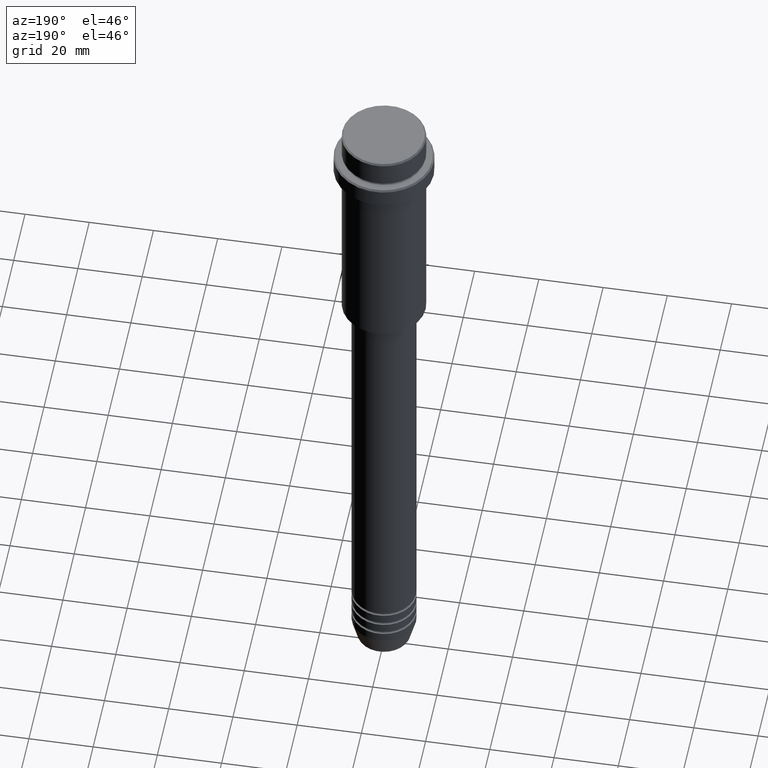
[diagram: clean part render]
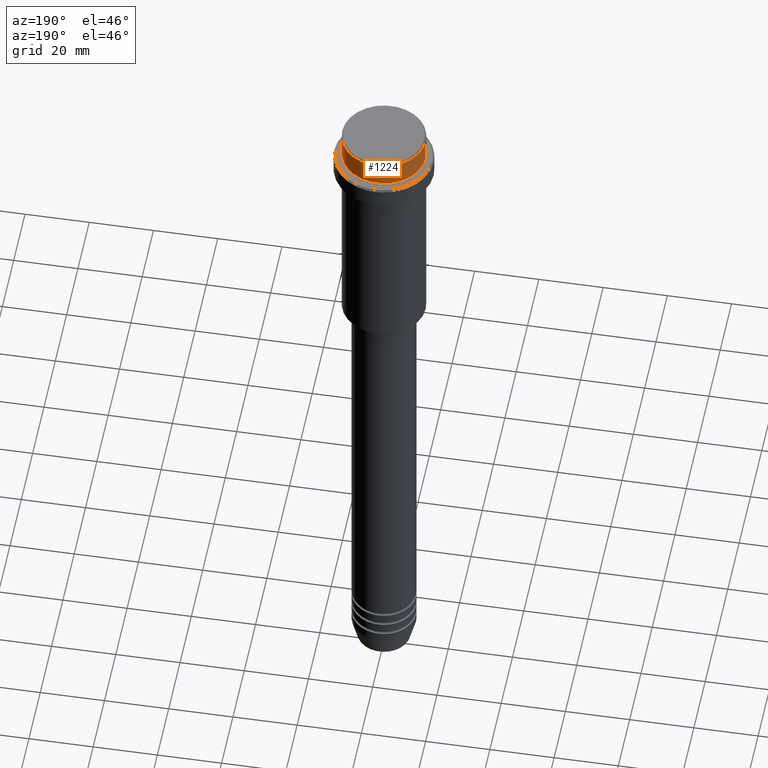
[diagram: same view with one face highlighted and labeled with its STEP entity id]
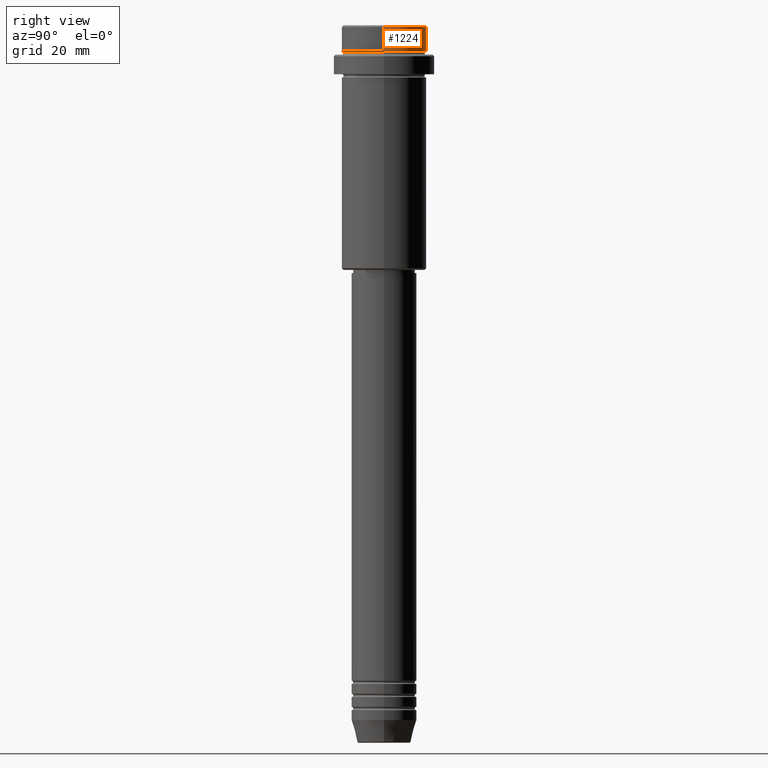
[diagram: same view with one face highlighted and labeled with its STEP entity id]
A machine part, auxiliary view. The second image highlights one B-rep face of the part: STEP entity #1224.
A second angle (right view) of the same face is appended — the face is thin or edge-on in the first view.
In plain terms, the highlighted cylindrical surface (partial cylindrical patch) has radius 13 mm, axis along (-0, -0, 1).
Its self-contained STEP definition (entity closure, byte-faithful):
#14 = CARTESIAN_POINT ( 'NONE',  ( 0.000000000000000000, 0.000000000000000000, 0.000000000000000000 ) ) ;
#20 = AXIS2_PLACEMENT_3D ( 'NONE', #1317, #127, #1314 ) ;
#79 = FACE_OUTER_BOUND ( 'NONE', #1235, .T. ) ;
#116 = EDGE_CURVE ( 'NONE', #427, #314, #978, .T. ) ;
#120 = ORIENTED_EDGE ( 'NONE', *, *, #116, .F. ) ;
#127 = DIRECTION ( 'NONE',  ( 0.000000000000000000, 0.000000000000000000, -1.000000000000000000 ) ) ;
#128 = VECTOR ( 'NONE', #409, 1000.000000000000000 ) ;
#208 = ORIENTED_EDGE ( 'NONE', *, *, #1312, .T. ) ;
#297 = LINE ( 'NONE', #1197, #710 ) ;
#314 = VERTEX_POINT ( 'NONE', #740 ) ;
#340 = CARTESIAN_POINT ( 'NONE',  ( -12.99999999999999822, 1.592040838891558898E-15, -0.4999999999999761302 ) ) ;
#344 = EDGE_CURVE ( 'NONE', #427, #1102, #1128, .T. ) ;
#409 = DIRECTION ( 'NONE',  ( -0.000000000000000000, -0.000000000000000000, 1.000000000000000000 ) ) ;
#427 = VERTEX_POINT ( 'NONE', #864 ) ;
#451 = ORIENTED_EDGE ( 'NONE', *, *, #827, .T. ) ;
#546 = DIRECTION ( 'NONE',  ( -0.000000000000000000, -0.000000000000000000, 1.000000000000000000 ) ) ;
#710 = VECTOR ( 'NONE', #767, 1000.000000000000000 ) ;
#740 = CARTESIAN_POINT ( 'NONE',  ( 12.99999999999999822, 0.000000000000000000, -0.4999999999999761302 ) ) ;
#767 = DIRECTION ( 'NONE',  ( -0.000000000000000000, -0.000000000000000000, 1.000000000000000000 ) ) ;
#778 = DIRECTION ( 'NONE',  ( 1.000000000000000000, 0.000000000000000000, 0.000000000000000000 ) ) ;
#788 = CARTESIAN_POINT ( 'NONE',  ( 0.000000000000000000, 0.000000000000000000, -7.999999999999998224 ) ) ;
#827 = EDGE_CURVE ( 'NONE', #1102, #898, #297, .T. ) ;
#864 = CARTESIAN_POINT ( 'NONE',  ( 12.99999999999999822, 0.000000000000000000, -7.999999999999998224 ) ) ;
#891 = DIRECTION ( 'NONE',  ( 1.000000000000000000, 0.000000000000000000, 0.000000000000000000 ) ) ;
#898 = VERTEX_POINT ( 'NONE', #340 ) ;
#978 = LINE ( 'NONE', #1404, #128 ) ;
#999 = CYLINDRICAL_SURFACE ( 'NONE', #1303, 12.99999999999999822 ) ;
#1036 = ORIENTED_EDGE ( 'NONE', *, *, #344, .T. ) ;
#1067 = CIRCLE ( 'NONE', #20, 12.99999999999999822 ) ;
#1074 = CARTESIAN_POINT ( 'NONE',  ( -12.99999999999999822, 1.592040838891558898E-15, -7.999999999999998224 ) ) ;
#1086 = AXIS2_PLACEMENT_3D ( 'NONE', #788, #546, #891 ) ;
#1102 = VERTEX_POINT ( 'NONE', #1074 ) ;
#1117 = DIRECTION ( 'NONE',  ( -0.000000000000000000, -0.000000000000000000, 1.000000000000000000 ) ) ;
#1128 = CIRCLE ( 'NONE', #1086, 12.99999999999999822 ) ;
#1197 = CARTESIAN_POINT ( 'NONE',  ( -12.99999999999999822, 1.592040838891558898E-15, 0.000000000000000000 ) ) ;
#1224 = ADVANCED_FACE ( 'NONE', ( #79 ), #999, .T. ) ;
#1235 = EDGE_LOOP ( 'NONE', ( #1036, #451, #208, #120 ) ) ;
#1303 = AXIS2_PLACEMENT_3D ( 'NONE', #14, #1117, #778 ) ;
#1312 = EDGE_CURVE ( 'NONE', #898, #314, #1067, .T. ) ;
#1314 = DIRECTION ( 'NONE',  ( 1.000000000000000000, 0.000000000000000000, 0.000000000000000000 ) ) ;
#1317 = CARTESIAN_POINT ( 'NONE',  ( 0.000000000000000000, 0.000000000000000000, -0.4999999999999761302 ) ) ;
#1404 = CARTESIAN_POINT ( 'NONE',  ( 12.99999999999999822, 0.000000000000000000, 0.000000000000000000 ) ) ;